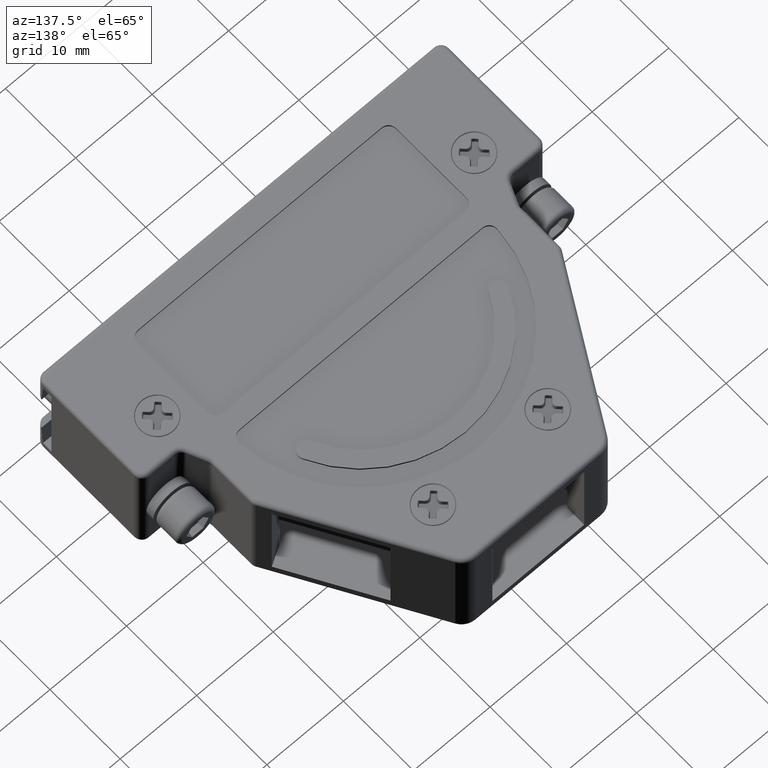
[diagram: clean part render]
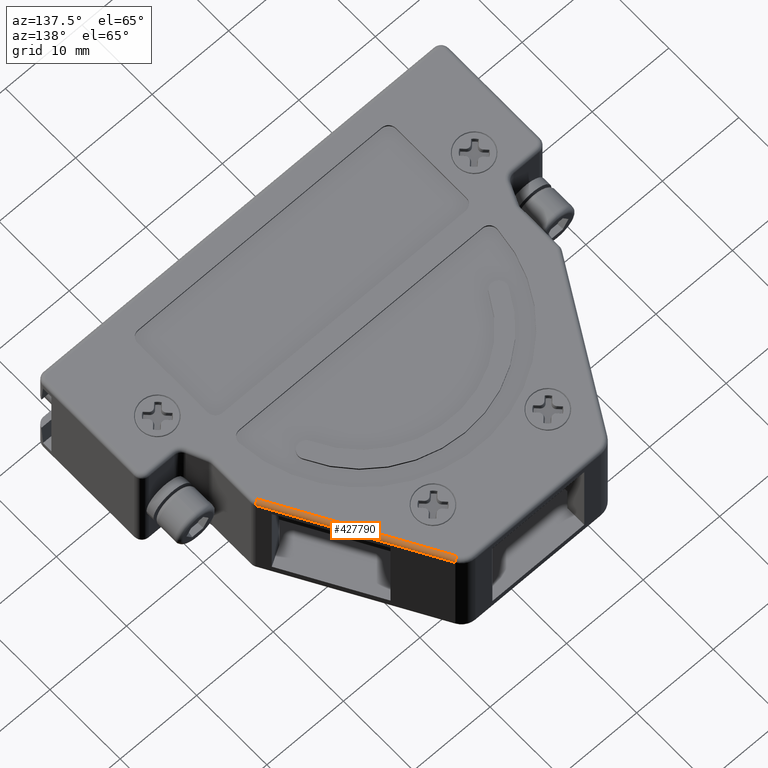
[diagram: same view with one face highlighted and labeled with its STEP entity id]
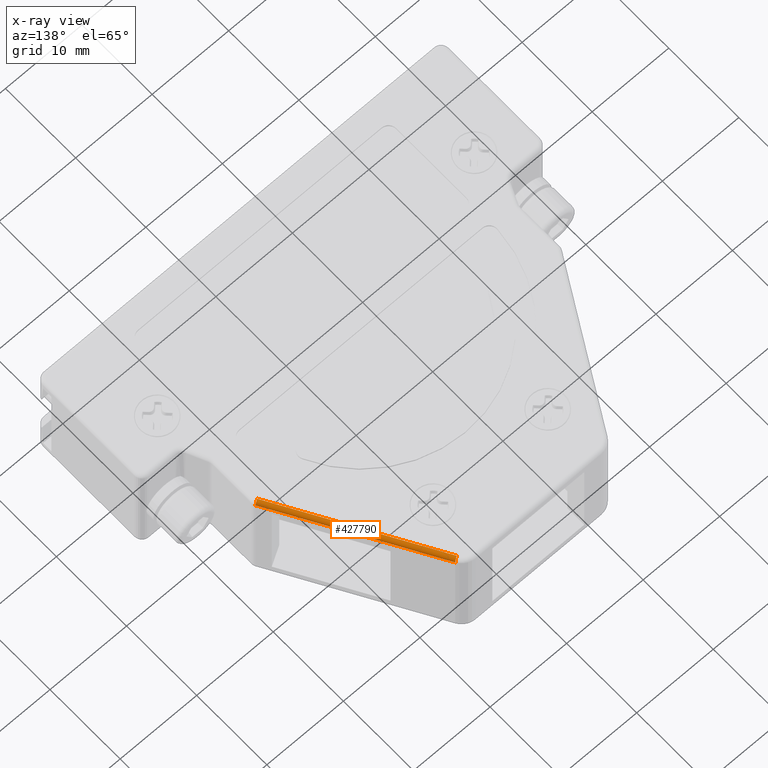
[diagram: x-ray of the same camera — body ghosted, the highlighted face saturated]
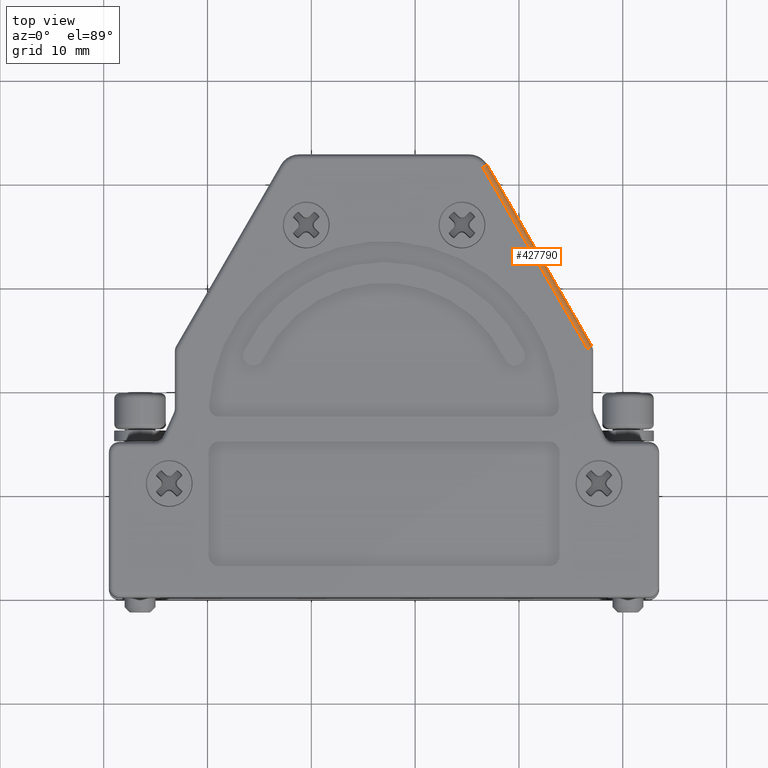
[diagram: same view with one face highlighted and labeled with its STEP entity id]
A machine part, auxiliary view. The second image highlights one B-rep face of the part: STEP entity #427790.
The next image is the same camera in x-ray: the body ghosted, the highlighted face saturated — about 0% of this face is hidden behind the body in this view.
A second angle (top view) of the same face is appended — the face is thin or edge-on in the first view.
In plain terms, the highlighted cylindrical surface (edge-blend (fillet) strip) has radius 0.5 mm, axis along (0.5, -0.866, 0).
Its self-contained STEP definition (entity closure, byte-faithful):
#22690=CARTESIAN_POINT('',(70.0160254037844,23.5820508075689,-20.5));
#22700=VERTEX_POINT('',#22690);
#22730=CARTESIAN_POINT('',(83.4867912182804,0.25,-20.5));
#22740=DIRECTION('',(0.5,-0.866025403784439,0.));
#22750=VECTOR('',#22740,1.);
#22760=LINE('',#22730,#22750);
#22770=CARTESIAN_POINT('',(59.9309002353436,41.05,-20.5));
#22780=VERTEX_POINT('',#22770);
#22790=EDGE_CURVE('',#22780,#22700,#22760,.T.);
#418640=CARTESIAN_POINT('',(59.4978875334514,40.8,-20.));
#418650=VERTEX_POINT('',#418640);
#418680=CARTESIAN_POINT('',(83.0537785163881,0.,-20.));
#418690=DIRECTION('',(0.5,-0.866025403784439,0.));
#418700=VECTOR('',#418690,1.);
#418710=LINE('',#418680,#418700);
#418720=CARTESIAN_POINT('',(69.5830127018922,23.3320508075689,-20.));
#418730=VERTEX_POINT('',#418720);
#418740=EDGE_CURVE('',#418650,#418730,#418710,.T.);
#427560=CARTESIAN_POINT('',(83.0537785163881,0.,-20.5));
#427570=DIRECTION('',(0.5,-0.866025403784439,0.));
#427580=DIRECTION('',(-0.866025403784439,-0.5,0.));
#427590=AXIS2_PLACEMENT_3D('',#427560,#427570,#427580);
#427600=CYLINDRICAL_SURFACE('',#427590,0.5);
#427610=ORIENTED_EDGE('',*,*,#418740,.T.);
#427620=CARTESIAN_POINT('',(59.4978875334514,40.8,-20.5));
#427630=DIRECTION('',(-0.500000000000001,0.866025403784438,0.));
#427640=DIRECTION('',(-0.866025403784438,-0.500000000000001,0.));
#427650=AXIS2_PLACEMENT_3D('',#427620,#427630,#427640);
#427660=CIRCLE('',#427650,0.5);
#427670=EDGE_CURVE('',#418650,#22780,#427660,.T.);
#427680=ORIENTED_EDGE('',*,*,#427670,.F.);
#427690=ORIENTED_EDGE('',*,*,#22790,.F.);
#427700=CARTESIAN_POINT('',(69.5830127018922,23.3320508075689,-20.5));
#427710=DIRECTION('',(-0.499999999999996,0.866025403784441,0.));
#427720=DIRECTION('',(-0.866025403784441,-0.499999999999996,0.));
#427730=AXIS2_PLACEMENT_3D('',#427700,#427710,#427720);
#427740=CIRCLE('',#427730,0.5);
#427750=EDGE_CURVE('',#418730,#22700,#427740,.T.);
#427760=ORIENTED_EDGE('',*,*,#427750,.T.);
#427770=EDGE_LOOP('',(#427760,#427690,#427680,#427610));
#427780=FACE_OUTER_BOUND('',#427770,.T.);
#427790=ADVANCED_FACE('',(#427780),#427600,.T.);